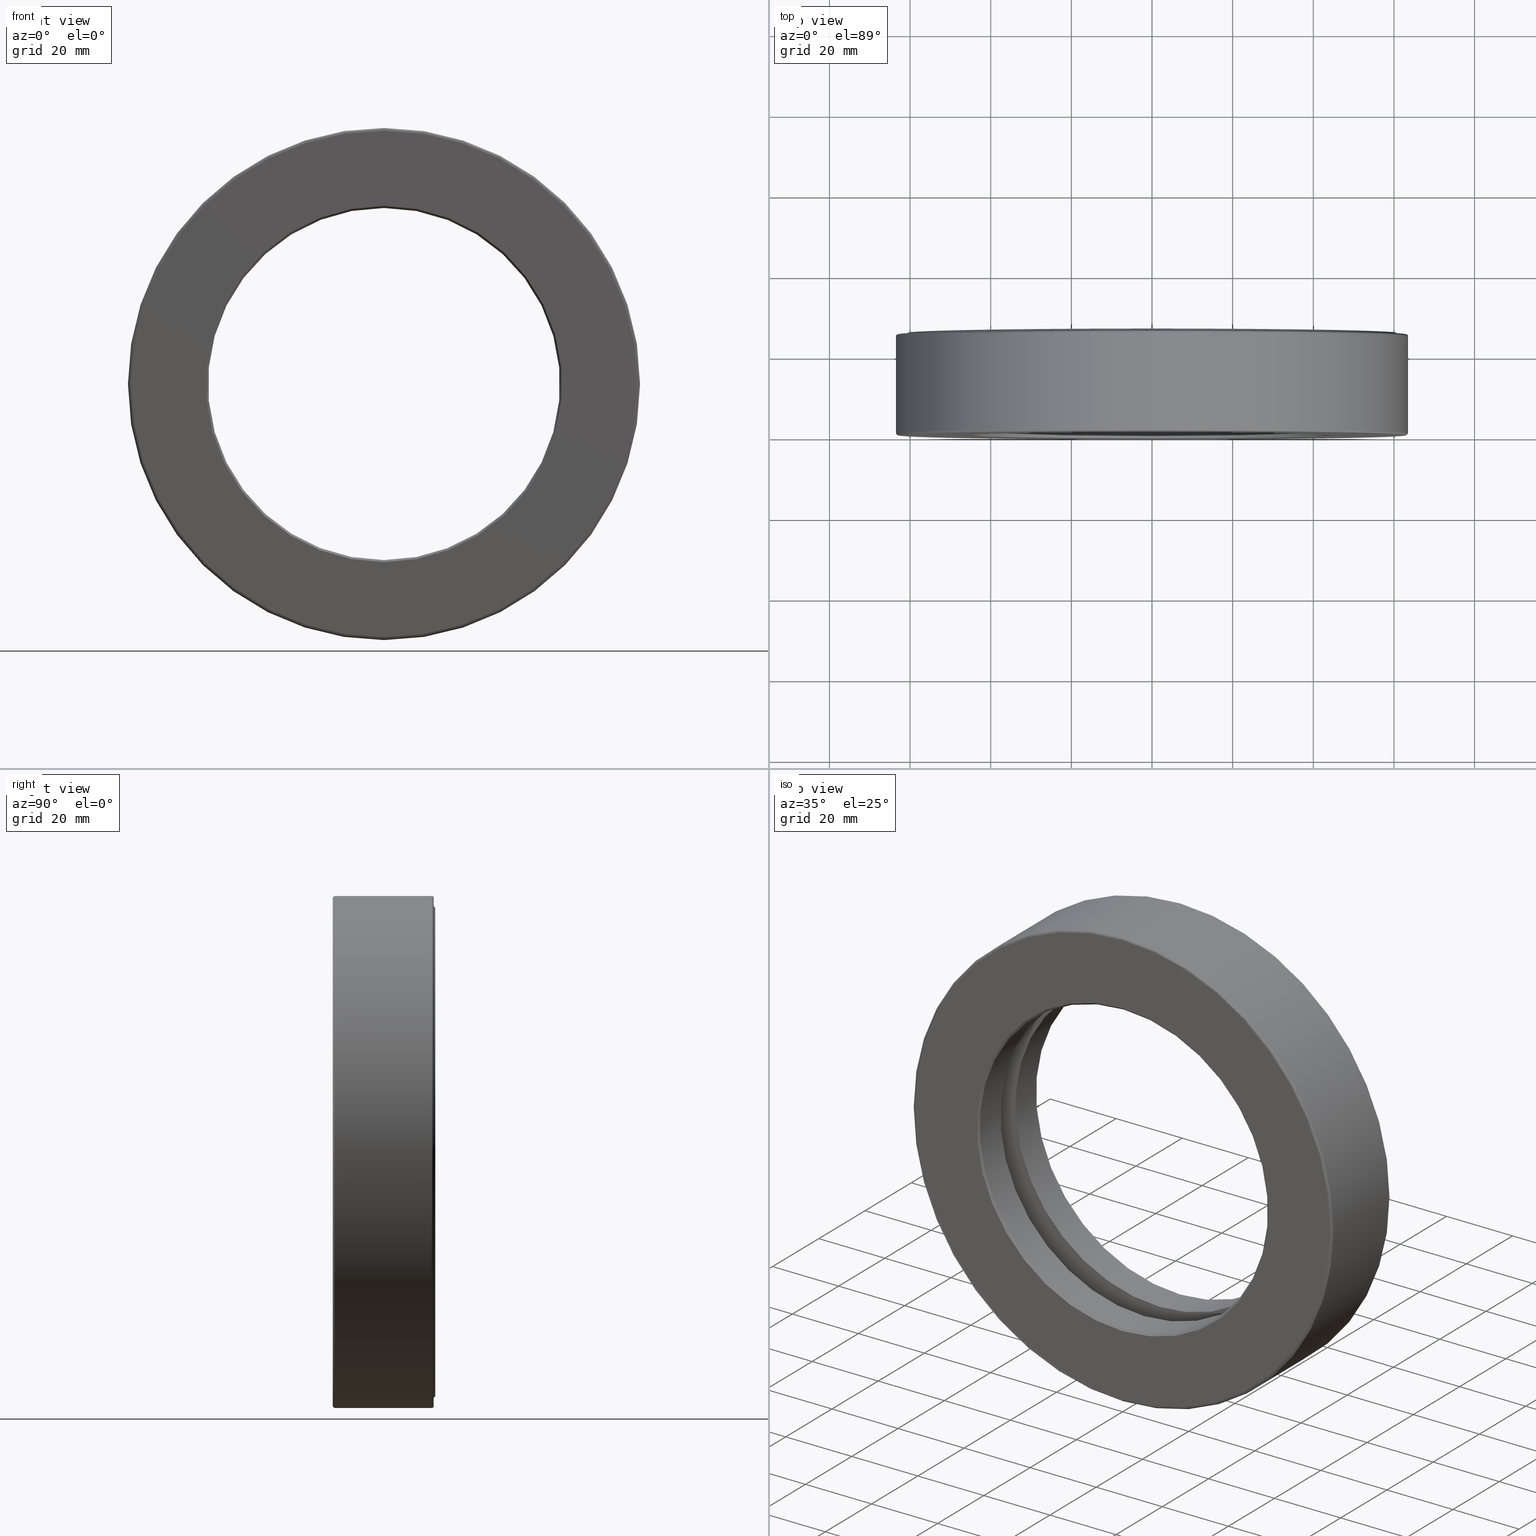
[diagram: canonical four-view strip — front | top / right | iso, engineering-drawing reading convention]
A machine part, canonical four-view strip (front | top / right | iso — engineering-drawing reading convention). The complete STEP part file that produces these views, byte-faithful:
ISO-10303-21;
HEADER;
FILE_DESCRIPTION (( 'STEP AP203' ),
    '1' );
FILE_NAME ('T-100-47.step',
    '2016-06-29T18:27:41',
    ( '' ),
    ( '' ),
    'SwSTEP 2.0',
    'SolidWorks 2016',
    '' );
FILE_SCHEMA (( 'CONFIG_CONTROL_DESIGN' ));
ENDSEC;

DATA;
#1 = AXIS2_PLACEMENT_3D ( 'NONE', #158, #383, #157 ) ;
#2 = ADVANCED_FACE ( 'NONE', ( #310, #262 ), #133, .F. ) ;
#3 = FACE_BOUND ( 'NONE', #249, .T. ) ;
#4 = EDGE_CURVE ( 'NONE', #510, #510, #225, .T. ) ;
#5 = EDGE_LOOP ( 'NONE', ( #479 ) ) ;
#6 = DIRECTION ( 'NONE',  ( -0.0000000000000000000, 1.000000000000000000, -0.0000000000000000000 ) ) ;
#7 = APPROVAL ( #213, 'UNSPECIFIED' ) ;
#8 = CC_DESIGN_PERSON_AND_ORGANIZATION_ASSIGNMENT ( #277, #302, ( #586 ) ) ;
#9 = CALENDAR_DATE ( 2016, 29, 6 ) ;
#10 = FACE_OUTER_BOUND ( 'NONE', #422, .T. ) ;
#11 = FACE_BOUND ( 'NONE', #325, .T. ) ;
#12 = CARTESIAN_POINT ( 'NONE',  ( 0.0000000000000000000, 0.6312499999999998700, 0.0000000000000000000 ) ) ;
#13 = AXIS2_PLACEMENT_3D ( 'NONE', #345, #167, #295 ) ;
#14 = EDGE_LOOP ( 'NONE', ( #460 ) ) ;
#15 = DIRECTION ( 'NONE',  ( 0.0000000000000000000, 0.0000000000000000000, 1.000000000000000000 ) ) ;
#16 = ORIENTED_EDGE ( 'NONE', *, *, #314, .T. ) ;
#17 = DIRECTION ( 'NONE',  ( 0.0000000000000000000, 0.0000000000000000000, 1.000000000000000000 ) ) ;
#18 = DIRECTION ( 'NONE',  ( -0.0000000000000000000, 1.000000000000000000, -0.0000000000000000000 ) ) ;
#19 = CARTESIAN_POINT ( 'NONE',  ( 1.884676553006053000E-015, 0.6312499999999999800, 0.0000000000000000000 ) ) ;
#20 = APPROVAL_DATE_TIME ( #267, #72 ) ;
#21 = DIRECTION ( 'NONE',  ( 1.000000000000000000, 0.0000000000000000000, -1.047444401652940500E-014 ) ) ;
#22 = SPHERICAL_SURFACE ( 'NONE', #355, 0.2187499999999999400 ) ;
#23 = CARTESIAN_POINT ( 'NONE',  ( 0.0000000000000000000, 0.9999999999999996700, 0.0000000000000000000 ) ) ;
#24 = AXIS2_PLACEMENT_3D ( 'NONE', #300, #346, #596 ) ;
#25 = PLANE ( 'NONE',  #391 ) ;
#26 = CYLINDRICAL_SURFACE ( 'NONE', #288, 1.718750000000000400 ) ;
#27 = EDGE_LOOP ( 'NONE', ( #470 ) ) ;
#28 = AXIS2_PLACEMENT_3D ( 'NONE', #104, #276, #556 ) ;
#29 = CARTESIAN_POINT ( 'NONE',  ( 0.0000000000000000000, 2.731847993664263200E-016, 0.0000000000000000000 ) ) ;
#30 = AXIS2_PLACEMENT_3D ( 'NONE', #326, #6, #360 ) ;
#31 = EDGE_LOOP ( 'NONE', ( #89 ) ) ;
#32 = DIRECTION ( 'NONE',  ( -0.0000000000000000000, 1.000000000000000000, -0.0000000000000000000 ) ) ;
#33 = EDGE_LOOP ( 'NONE', ( #357 ) ) ;
#34 = ORIENTED_EDGE ( 'NONE', *, *, #361, .T. ) ;
#35 = CARTESIAN_POINT ( 'NONE',  ( 0.0000000000000000000, 0.9999999999999996700, 0.0000000000000000000 ) ) ;
#36 = CC_DESIGN_APPROVAL ( #7, ( #368 ) ) ;
#37 = DATE_AND_TIME ( #331, #531 ) ;
#38 = CIRCLE ( 'NONE', #428, 1.718750000000000400 ) ;
#39 = DIRECTION ( 'NONE',  ( 0.0000000000000000000, -1.000000000000000000, 0.0000000000000000000 ) ) ;
#40 = EDGE_LOOP ( 'NONE', ( #51 ) ) ;
#41 = EDGE_LOOP ( 'NONE', ( #169 ) ) ;
#42 = CARTESIAN_POINT ( 'NONE',  ( 0.0000000000000000000, 0.9649999999999996400, 2.480000000000000400 ) ) ;
#43 = ADVANCED_FACE ( 'NONE', ( #70, #111 ), #240, .F. ) ;
#44 = MECHANICAL_CONTEXT ( 'NONE', #305, 'mechanical' ) ;
#45 = PRODUCT_DEFINITION ( 'UNKNOWN', '', #586, #534 ) ;
#46 =( NAMED_UNIT ( * ) PLANE_ANGLE_UNIT ( ) SI_UNIT ( $, .RADIAN. ) );
#47 = ADVANCED_FACE ( 'NONE', ( #103, #135 ), #323, .F. ) ;
#48 = PERSON_AND_ORGANIZATION ( #539, #426 ) ;
#49 = FACE_BOUND ( 'NONE', #294, .T. ) ;
#50 = CARTESIAN_POINT ( 'NONE',  ( 0.0000000000000000000, 0.3687499999999995800, 2.480000000000000400 ) ) ;
#51 = ORIENTED_EDGE ( 'NONE', *, *, #373, .T. ) ;
#52 = APPROVAL_PERSON_ORGANIZATION ( #374, #7, #546 ) ;
#53 = DIRECTION ( 'NONE',  ( -0.0000000000000000000, 1.000000000000000000, -0.0000000000000000000 ) ) ;
#54 = AXIS2_PLACEMENT_3D ( 'NONE', #344, #126, #78 ) ;
#55 = FACE_BOUND ( 'NONE', #387, .T. ) ;
#56 = EDGE_LOOP ( 'NONE', ( #205 ) ) ;
#57 = DIRECTION ( 'NONE',  ( 0.0000000000000000000, 0.0000000000000000000, 1.000000000000000000 ) ) ;
#58 = ADVANCED_FACE ( 'NONE', ( #584, #408 ), #285, .F. ) ;
#59 = DIRECTION ( 'NONE',  ( -0.0000000000000000000, 1.000000000000000000, -0.0000000000000000000 ) ) ;
#60 = AXIS2_PLACEMENT_3D ( 'NONE', #184, #186, #265 ) ;
#61 = FACE_OUTER_BOUND ( 'NONE', #41, .T. ) ;
#62 = EDGE_LOOP ( 'NONE', ( #270 ) ) ;
#63 = EDGE_LOOP ( 'NONE', ( #65 ) ) ;
#64 = AXIS2_PLACEMENT_3D ( 'NONE', #301, #441, #496 ) ;
#65 = ORIENTED_EDGE ( 'NONE', *, *, #336, .F. ) ;
#66 = DIRECTION ( 'NONE',  ( 0.0000000000000000000, 0.0000000000000000000, 1.000000000000000000 ) ) ;
#67 = VERTEX_POINT ( 'NONE', #129 ) ;
#68 = DIRECTION ( 'NONE',  ( 0.0000000000000000000, 0.0000000000000000000, 1.000000000000000000 ) ) ;
#69 = VERTEX_POINT ( 'NONE', #405 ) ;
#70 = FACE_OUTER_BOUND ( 'NONE', #77, .T. ) ;
#71 = CARTESIAN_POINT ( 'NONE',  ( 0.0000000000000000000, 0.0000000000000000000, 0.0000000000000000000 ) ) ;
#72 = APPROVAL ( #352, 'UNSPECIFIED' ) ;
#73 = CARTESIAN_POINT ( 'NONE',  ( -2.252250000000000100, 0.4999999999999998300, 0.0000000000000000000 ) ) ;
#74 = CIRCLE ( 'NONE', #566, 2.480000000000000400 ) ;
#75 = FACE_OUTER_BOUND ( 'NONE', #246, .T. ) ;
#76 = CARTESIAN_POINT ( 'NONE',  ( 0.0000000000000000000, 0.9120000000000000300, 0.0000000000000000000 ) ) ;
#77 = EDGE_LOOP ( 'NONE', ( #390 ) ) ;
#78 = DIRECTION ( 'NONE',  ( -3.491481338843132200E-015, 0.0000000000000000000, -1.000000000000000000 ) ) ;
#79 = DIRECTION ( 'NONE',  ( 0.0000000000000000000, 0.0000000000000000000, -1.000000000000000000 ) ) ;
#80 = DATE_AND_TIME ( #315, #478 ) ;
#81 = VERTEX_POINT ( 'NONE', #603 ) ;
#82 = DIRECTION ( 'NONE',  ( -0.0000000000000000000, 1.000000000000000000, -0.0000000000000000000 ) ) ;
#83 = EDGE_LOOP ( 'NONE', ( #410 ) ) ;
#84 = DIRECTION ( 'NONE',  ( 0.0000000000000000000, -1.000000000000000000, 0.0000000000000000000 ) ) ;
#85 = APPLICATION_PROTOCOL_DEFINITION ( 'international standard', 'config_control_design', 1994, #178 ) ;
#86 = CARTESIAN_POINT ( 'NONE',  ( 0.0000000000000000000, 0.0000000000000000000, 0.0000000000000000000 ) ) ;
#87 = CARTESIAN_POINT ( 'NONE',  ( 0.0000000000000000000, -1.520092225959140700E-016, 2.480000000000000400 ) ) ;
#88 = CIRCLE ( 'NONE', #1, 2.427249999999999900 ) ;
#89 = ORIENTED_EDGE ( 'NONE', *, *, #560, .F. ) ;
#90 = ORIENTED_EDGE ( 'NONE', *, *, #99, .F. ) ;
#91 = PERSON_AND_ORGANIZATION_ROLE ( 'classification_officer' ) ;
#92 = CLOSED_SHELL ( 'NONE', ( #191, #605, #481, #58, #263, #214, #509, #312 ) ) ;
#93 = APPLICATION_PROTOCOL_DEFINITION ( 'international standard', 'config_control_design', 1994, #305 ) ;
#94 = AXIS2_PLACEMENT_3D ( 'NONE', #561, #141, #463 ) ;
#95 = EDGE_CURVE ( 'NONE', #349, #349, #564, .T. ) ;
#96 = VERTEX_POINT ( 'NONE', #393 ) ;
#97 = EDGE_LOOP ( 'NONE', ( #526 ) ) ;
#98 = ADVANCED_FACE ( 'NONE', ( #517, #146 ), #190, .T. ) ;
#99 = EDGE_CURVE ( 'NONE', #466, #466, #453, .T. ) ;
#100 = MANIFOLD_SOLID_BREP ( 'BALLS[1]', #412 ) ;
#101 = VERTEX_POINT ( 'NONE', #444 ) ;
#102 = AXIS2_PLACEMENT_3D ( 'NONE', #447, #32, #443 ) ;
#103 = FACE_OUTER_BOUND ( 'NONE', #381, .T. ) ;
#104 = CARTESIAN_POINT ( 'NONE',  ( 0.0000000000000000000, 0.0000000000000000000, 0.0000000000000000000 ) ) ;
#105 = CARTESIAN_POINT ( 'NONE',  ( 0.0000000000000000000, 0.0000000000000000000, 0.0000000000000000000 ) ) ;
#106 = CARTESIAN_POINT ( 'NONE',  ( 0.0000000000000000000, 0.9849999999999997600, 2.480000000000000400 ) ) ;
#107 = VERTEX_POINT ( 'NONE', #119 ) ;
#108 = AXIS2_PLACEMENT_3D ( 'NONE', #425, #418, #520 ) ;
#109 = PRODUCT ( 'T-100-47', 'T-100-47', '', ( #44 ) ) ;
#110 = FACE_OUTER_BOUND ( 'NONE', #536, .T. ) ;
#111 = FACE_OUTER_BOUND ( 'NONE', #219, .T. ) ;
#112 = ORIENTED_EDGE ( 'NONE', *, *, #373, .F. ) ;
#113 = DIRECTION ( 'NONE',  ( -0.0000000000000000000, 1.000000000000000000, 0.0000000000000000000 ) ) ;
#114 = AXIS2_PLACEMENT_3D ( 'NONE', #335, #197, #283 ) ;
#115 = DIRECTION ( 'NONE',  ( 0.0000000000000000000, 0.0000000000000000000, 1.000000000000000000 ) ) ;
#116 = FACE_OUTER_BOUND ( 'NONE', #179, .T. ) ;
#117 = EDGE_CURVE ( 'NONE', #199, #199, #168, .T. ) ;
#118 = CARTESIAN_POINT ( 'NONE',  ( 2.252250000000000100, 0.4999999999999998300, -1.572737769081889400E-014 ) ) ;
#119 = CARTESIAN_POINT ( 'NONE',  ( 0.0000000000000000000, 0.9649999999999996400, 2.419999999999999900 ) ) ;
#120 = EDGE_CURVE ( 'NONE', #589, #589, #177, .T. ) ;
#121 = APPROVAL_PERSON_ORGANIZATION ( #348, #72, #220 ) ;
#122 = CARTESIAN_POINT ( 'NONE',  ( 0.0000000000000000000, 0.01500000000000052300, 2.499999999999999600 ) ) ;
#123 = CYLINDRICAL_SURFACE ( 'NONE', #201, 2.419999999999999900 ) ;
#124 = CIRCLE ( 'NONE', #244, 2.500000000000000000 ) ;
#125 = EDGE_LOOP ( 'NONE', ( #34 ) ) ;
#126 = DIRECTION ( 'NONE',  ( -1.000000000000000000, 0.0000000000000000000, 3.491481338843132200E-015 ) ) ;
#127 = ORIENTED_EDGE ( 'NONE', *, *, #236, .F. ) ;
#128 = CC_DESIGN_PERSON_AND_ORGANIZATION_ASSIGNMENT ( #48, #252, ( #45 ) ) ;
#129 = CARTESIAN_POINT ( 'NONE',  ( 0.0000000000000000000, -1.515321933985646100E-016, 2.484999999999999400 ) ) ;
#130 = ADVANCED_FACE ( 'NONE', ( #11, #543 ), #274, .F. ) ;
#131 = CARTESIAN_POINT ( 'NONE',  ( 0.0000000000000000000, 0.0000000000000000000, 0.0000000000000000000 ) ) ;
#132 = PERSON_AND_ORGANIZATION ( #539, #426 ) ;
#133 = PLANE ( 'NONE',  #598 ) ;
#134 = ORIENTED_EDGE ( 'NONE', *, *, #271, .T. ) ;
#135 = FACE_OUTER_BOUND ( 'NONE', #469, .T. ) ;
#136 = ADVANCED_FACE ( 'NONE', ( #467, #532 ), #377, .F. ) ;
#137 = CC_DESIGN_PERSON_AND_ORGANIZATION_ASSIGNMENT ( #132, #91, ( #368 ) ) ;
#138 = AXIS2_PLACEMENT_3D ( 'NONE', #150, #18, #575 ) ;
#139 = VERTEX_POINT ( 'NONE', #87 ) ;
#140 = EDGE_LOOP ( 'NONE', ( #287 ) ) ;
#141 = DIRECTION ( 'NONE',  ( 0.0000000000000000000, -1.000000000000000000, 0.0000000000000000000 ) ) ;
#142 = ORIENTED_EDGE ( 'NONE', *, *, #560, .T. ) ;
#143 = DIRECTION ( 'NONE',  ( -0.0000000000000000000, 1.000000000000000000, -0.0000000000000000000 ) ) ;
#144 = DIRECTION ( 'NONE',  ( 0.0000000000000000000, 0.0000000000000000000, 1.000000000000000000 ) ) ;
#145 = AXIS2_PLACEMENT_3D ( 'NONE', #420, #414, #559 ) ;
#146 = FACE_OUTER_BOUND ( 'NONE', #228, .T. ) ;
#147 = PLANE ( 'NONE',  #320 ) ;
#148 = EDGE_CURVE ( 'NONE', #459, #459, #501, .T. ) ;
#149 = MANIFOLD_SOLID_BREP ( 'BALLS[2]', #363 ) ;
#150 = CARTESIAN_POINT ( 'NONE',  ( 0.0000000000000000000, 0.3687499999999997400, 0.0000000000000000000 ) ) ;
#151 = EDGE_LOOP ( 'NONE', ( #411 ) ) ;
#152 = DIRECTION ( 'NONE',  ( 1.047444401652940500E-014, 0.0000000000000000000, 1.000000000000000000 ) ) ;
#153 = LOCAL_TIME ( 14, 27, 41.00000000000000000, #232 ) ;
#154 = FACE_OUTER_BOUND ( 'NONE', #318, .T. ) ;
#155 = CIRCLE ( 'NONE', #592, 1.738750000000000500 ) ;
#156 = EDGE_LOOP ( 'NONE', ( #504 ) ) ;
#157 = DIRECTION ( 'NONE',  ( 0.0000000000000000000, 0.0000000000000000000, 1.000000000000000000 ) ) ;
#158 = CARTESIAN_POINT ( 'NONE',  ( 0.0000000000000000000, 0.3687499999999997400, 0.0000000000000000000 ) ) ;
#159 = AXIS2_PLACEMENT_3D ( 'NONE', #409, #273, #366 ) ;
#160 = DIRECTION ( 'NONE',  ( 0.0000000000000000000, 0.0000000000000000000, 1.000000000000000000 ) ) ;
#161 = FACE_BOUND ( 'NONE', #207, .T. ) ;
#162 = ORIENTED_EDGE ( 'NONE', *, *, #406, .T. ) ;
#163 = CLOSED_SHELL ( 'NONE', ( #354 ) ) ;
#164 = CARTESIAN_POINT ( 'NONE',  ( 0.0000000000000000000, 0.3687499999999997400, 0.0000000000000000000 ) ) ;
#165 = COORDINATED_UNIVERSAL_TIME_OFFSET ( 5, 0, .BEHIND. ) ;
#166 = VERTEX_POINT ( 'NONE', #397 ) ;
#167 = DIRECTION ( 'NONE',  ( -0.0000000000000000000, 1.000000000000000000, -0.0000000000000000000 ) ) ;
#168 = CIRCLE ( 'NONE', #231, 2.480000000000000400 ) ;
#169 = ORIENTED_EDGE ( 'NONE', *, *, #227, .T. ) ;
#170 = AXIS2_PLACEMENT_3D ( 'NONE', #73, #375, #245 ) ;
#171 = EDGE_LOOP ( 'NONE', ( #446 ) ) ;
#172 = CARTESIAN_POINT ( 'NONE',  ( 0.0000000000000000000, 0.6312499999999998700, 2.427249999999999900 ) ) ;
#173 = ADVANCED_FACE ( 'NONE', ( #364, #49 ), #147, .F. ) ;
#174 = CARTESIAN_POINT ( 'NONE',  ( 0.0000000000000000000, 0.6312499999999999800, 1.718750000000000400 ) ) ;
#175 = SECURITY_CLASSIFICATION_LEVEL ( 'unclassified' ) ;
#176 = CIRCLE ( 'NONE', #24, 2.427249999999999900 ) ;
#177 = CIRCLE ( 'NONE', #264, 2.480000000000000400 ) ;
#178 = APPLICATION_CONTEXT ( 'configuration controlled 3d designs of mechanical parts and assemblies' ) ;
#179 = EDGE_LOOP ( 'NONE', ( #489 ) ) ;
#180 = AXIS2_PLACEMENT_3D ( 'NONE', #332, #193, #369 ) ;
#181 = EDGE_LOOP ( 'NONE', ( #127 ) ) ;
#182 = ADVANCED_FACE ( 'NONE', ( #55, #278 ), #372, .F. ) ;
#183 = APPROVAL_PERSON_ORGANIZATION ( #516, #272, #595 ) ;
#184 = CARTESIAN_POINT ( 'NONE',  ( 0.0000000000000000000, 0.0000000000000000000, 0.0000000000000000000 ) ) ;
#185 = CYLINDRICAL_SURFACE ( 'NONE', #471, 2.473000000000000300 ) ;
#186 = DIRECTION ( 'NONE',  ( -0.0000000000000000000, 1.000000000000000000, -0.0000000000000000000 ) ) ;
#187 = DIRECTION ( 'NONE',  ( 0.0000000000000000000, 0.0000000000000000000, 1.000000000000000000 ) ) ;
#188 = AXIS2_PLACEMENT_3D ( 'NONE', #23, #568, #472 ) ;
#189 = TOROIDAL_SURFACE ( 'NONE', #222, 2.252250000000000100, 0.2187499999999999200 ) ;
#190 = TOROIDAL_SURFACE ( 'NONE', #159, 2.480000000000000400, 0.01999999999999992400 ) ;
#191 = ADVANCED_FACE ( 'NONE', ( #255, #75 ), #192, .T. ) ;
#192 = PLANE ( 'NONE',  #329 ) ;
#193 = DIRECTION ( 'NONE',  ( -0.0000000000000000000, 1.000000000000000000, -0.0000000000000000000 ) ) ;
#194 = EDGE_LOOP ( 'NONE', ( #239 ) ) ;
#195 = ORIENTED_EDGE ( 'NONE', *, *, #280, .F. ) ;
#196 = DIRECTION ( 'NONE',  ( -0.0000000000000000000, 1.000000000000000000, -0.0000000000000000000 ) ) ;
#197 = DIRECTION ( 'NONE',  ( 0.0000000000000000000, -1.000000000000000000, 0.0000000000000000000 ) ) ;
#198 = LOCAL_TIME ( 14, 27, 41.00000000000000000, #392 ) ;
#199 = VERTEX_POINT ( 'NONE', #106 ) ;
#200 = PLANE ( 'NONE',  #188 ) ;
#201 = AXIS2_PLACEMENT_3D ( 'NONE', #389, #439, #538 ) ;
#202 = MANIFOLD_SOLID_BREP ( 'Revolve3', #163 ) ;
#203 = CIRCLE ( 'NONE', #64, 2.480000000000000400 ) ;
#204 = FACE_OUTER_BOUND ( 'NONE', #521, .T. ) ;
#205 = ORIENTED_EDGE ( 'NONE', *, *, #4, .F. ) ;
#206 = CARTESIAN_POINT ( 'NONE',  ( 0.0000000000000000000, 0.02000000000000019800, 0.0000000000000000000 ) ) ;
#207 = EDGE_LOOP ( 'NONE', ( #112 ) ) ;
#208 = AXIS2_PLACEMENT_3D ( 'NONE', #206, #241, #160 ) ;
#209 = CARTESIAN_POINT ( 'NONE',  ( 0.0000000000000000000, 0.4999999999999998300, 0.0000000000000000000 ) ) ;
#210 = DIRECTION ( 'NONE',  ( 0.0000000000000000000, 0.0000000000000000000, 1.000000000000000000 ) ) ;
#211 = FACE_OUTER_BOUND ( 'NONE', #462, .T. ) ;
#212 = DIRECTION ( 'NONE',  ( 0.0000000000000000000, 0.0000000000000000000, 1.000000000000000000 ) ) ;
#213 = APPROVAL_STATUS ( 'not_yet_approved' ) ;
#214 = ADVANCED_FACE ( 'NONE', ( #204, #487 ), #200, .T. ) ;
#215 = CONICAL_SURFACE ( 'NONE', #449, 2.484999999999999400, 0.7853981633974341800 ) ;
#216 = FACE_BOUND ( 'NONE', #97, .T. ) ;
#217 = AXIS2_PLACEMENT_3D ( 'NONE', #330, #490, #386 ) ;
#218 = MANIFOLD_SOLID_BREP ( 'Revolve2[2]', #92 ) ;
#219 = EDGE_LOOP ( 'NONE', ( #473 ) ) ;
#220 = APPROVAL_ROLE ( '' ) ;
#221 = FACE_OUTER_BOUND ( 'NONE', #171, .T. ) ;
#222 = AXIS2_PLACEMENT_3D ( 'NONE', #209, #342, #210 ) ;
#223 = DATE_AND_TIME ( #483, #492 ) ;
#224 = VERTEX_POINT ( 'NONE', #550 ) ;
#225 = CIRCLE ( 'NONE', #430, 2.077250000000000300 ) ;
#226 = DIRECTION ( 'NONE',  ( -0.0000000000000000000, 1.000000000000000000, -0.0000000000000000000 ) ) ;
#227 = EDGE_CURVE ( 'NONE', #96, #96, #434, .T. ) ;
#228 = EDGE_LOOP ( 'NONE', ( #16 ) ) ;
#229 = CC_DESIGN_DATE_AND_TIME_ASSIGNMENT ( #80, #454, ( #45 ) ) ;
#230 = DIRECTION ( 'NONE',  ( -0.0000000000000000000, 1.000000000000000000, 0.0000000000000000000 ) ) ;
#231 = AXIS2_PLACEMENT_3D ( 'NONE', #317, #226, #370 ) ;
#232 = COORDINATED_UNIVERSAL_TIME_OFFSET ( 5, 0, .BEHIND. ) ;
#233 = DIRECTION ( 'NONE',  ( 0.0000000000000000000, -0.0000000000000000000, -1.000000000000000000 ) ) ;
#234 = ORIENTED_EDGE ( 'NONE', *, *, #117, .F. ) ;
#235 = DIRECTION ( 'NONE',  ( -0.0000000000000000000, 1.000000000000000000, -0.0000000000000000000 ) ) ;
#236 = EDGE_CURVE ( 'NONE', #574, #574, #338, .T. ) ;
#237 = DIRECTION ( 'NONE',  ( -0.0000000000000000000, 1.000000000000000000, -0.0000000000000000000 ) ) ;
#238 = CONICAL_SURFACE ( 'NONE', #557, 2.384999999999999800, 0.7853981633974513900 ) ;
#239 = ORIENTED_EDGE ( 'NONE', *, *, #415, .T. ) ;
#240 = CYLINDRICAL_SURFACE ( 'NONE', #28, 2.480000000000000400 ) ;
#241 = DIRECTION ( 'NONE',  ( -0.0000000000000000000, 1.000000000000000000, -0.0000000000000000000 ) ) ;
#242 = EDGE_LOOP ( 'NONE', ( #604 ) ) ;
#243 = EDGE_LOOP ( 'NONE', ( #234 ) ) ;
#244 = AXIS2_PLACEMENT_3D ( 'NONE', #289, #582, #432 ) ;
#245 = DIRECTION ( 'NONE',  ( 1.000000000000000000, 0.0000000000000000000, 0.0000000000000000000 ) ) ;
#246 = EDGE_LOOP ( 'NONE', ( #395 ) ) ;
#247 = ORIENTED_EDGE ( 'NONE', *, *, #290, .T. ) ;
#248 = DIRECTION ( 'NONE',  ( 0.0000000000000000000, 0.0000000000000000000, 1.000000000000000000 ) ) ;
#249 = EDGE_LOOP ( 'NONE', ( #247 ) ) ;
#250 = DIRECTION ( 'NONE',  ( 0.0000000000000000000, 0.0000000000000000000, 1.000000000000000000 ) ) ;
#251 = CARTESIAN_POINT ( 'NONE',  ( 0.0000000000000000000, -1.515321933985646100E-016, 0.0000000000000000000 ) ) ;
#252 = PERSON_AND_ORGANIZATION_ROLE ( 'creator' ) ;
#253 = FACE_OUTER_BOUND ( 'NONE', #63, .T. ) ;
#254 =( GEOMETRIC_REPRESENTATION_CONTEXT ( 3 ) GLOBAL_UNCERTAINTY_ASSIGNED_CONTEXT ( ( #599 ) ) GLOBAL_UNIT_ASSIGNED_CONTEXT ( ( #497, #46, #307 ) ) REPRESENTATION_CONTEXT ( 'NONE', 'WORKASPACE' ) );
#255 = FACE_BOUND ( 'NONE', #242, .T. ) ;
#256 = DIRECTION ( 'NONE',  ( -1.000000000000000000, 0.0000000000000000000, 6.982962677686264300E-015 ) ) ;
#257 = ADVANCED_FACE ( 'NONE', ( #525, #116 ), #549, .T. ) ;
#258 = ORIENTED_EDGE ( 'NONE', *, *, #4, .T. ) ;
#259 = CARTESIAN_POINT ( 'NONE',  ( -3.708388500185622300E-032, -1.517707079972393400E-016, 0.0000000000000000000 ) ) ;
#260 = VERTEX_POINT ( 'NONE', #172 ) ;
#261 = CARTESIAN_POINT ( 'NONE',  ( 0.0000000000000000000, 0.9999999999999996700, 1.738750000000000500 ) ) ;
#262 = FACE_BOUND ( 'NONE', #194, .T. ) ;
#263 = ADVANCED_FACE ( 'NONE', ( #419, #161 ), #602, .F. ) ;
#264 = AXIS2_PLACEMENT_3D ( 'NONE', #319, #143, #17 ) ;
#265 = DIRECTION ( 'NONE',  ( 0.0000000000000000000, 0.0000000000000000000, 1.000000000000000000 ) ) ;
#266 = ADVANCED_FACE ( 'NONE', ( #508, #216 ), #269, .F. ) ;
#267 = DATE_AND_TIME ( #9, #198 ) ;
#268 = CIRCLE ( 'NONE', #424, 1.718750000000000400 ) ;
#269 = CONICAL_SURFACE ( 'NONE', #114, 1.718750000000000400, 0.7853981633974517200 ) ;
#270 = ORIENTED_EDGE ( 'NONE', *, *, #99, .T. ) ;
#271 = EDGE_CURVE ( 'NONE', #107, #107, #404, .T. ) ;
#272 = APPROVAL ( #448, 'UNSPECIFIED' ) ;
#273 = DIRECTION ( 'NONE',  ( -0.0000000000000000000, 1.000000000000000000, -0.0000000000000000000 ) ) ;
#274 = PLANE ( 'NONE',  #94 ) ;
#275 = ADVANCED_FACE ( 'NONE', ( ), #22, .T. ) ;
#276 = DIRECTION ( 'NONE',  ( -0.0000000000000000000, 1.000000000000000000, -0.0000000000000000000 ) ) ;
#277 = PERSON_AND_ORGANIZATION ( #539, #426 ) ;
#278 = FACE_OUTER_BOUND ( 'NONE', #83, .T. ) ;
#279 = CARTESIAN_POINT ( 'NONE',  ( 0.0000000000000000000, 0.9649999999999996400, 0.0000000000000000000 ) ) ;
#280 = EDGE_CURVE ( 'NONE', #224, #224, #371, .T. ) ;
#281 = EDGE_LOOP ( 'NONE', ( #306 ) ) ;
#282 = CARTESIAN_POINT ( 'NONE',  ( 0.0000000000000000000, 0.9799999999999995400, 0.0000000000000000000 ) ) ;
#283 = DIRECTION ( 'NONE',  ( 0.0000000000000000000, 0.0000000000000000000, -1.000000000000000000 ) ) ;
#284 = APPROVAL_DATE_TIME ( #37, #7 ) ;
#285 = CYLINDRICAL_SURFACE ( 'NONE', #145, 1.718750000000000400 ) ;
#286 = CARTESIAN_POINT ( 'NONE',  ( 0.0000000000000000000, 0.6312499999999999800, 2.473000000000000300 ) ) ;
#287 = ORIENTED_EDGE ( 'NONE', *, *, #406, .F. ) ;
#288 = AXIS2_PLACEMENT_3D ( 'NONE', #86, #398, #450 ) ;
#289 = CARTESIAN_POINT ( 'NONE',  ( 0.0000000000000000000, 0.9649999999999996400, 0.0000000000000000000 ) ) ;
#290 = EDGE_CURVE ( 'NONE', #166, #166, #155, .T. ) ;
#291 = FACE_OUTER_BOUND ( 'NONE', #417, .T. ) ;
#292 = CIRCLE ( 'NONE', #208, 1.718750000000000400 ) ;
#293 = AXIS2_PLACEMENT_3D ( 'NONE', #519, #474, #233 ) ;
#294 = EDGE_LOOP ( 'NONE', ( #134 ) ) ;
#295 = DIRECTION ( 'NONE',  ( 0.0000000000000000000, 0.0000000000000000000, 1.000000000000000000 ) ) ;
#296 = DIRECTION ( 'NONE',  ( -0.0000000000000000000, 1.000000000000000000, -0.0000000000000000000 ) ) ;
#297 = AXIS2_PLACEMENT_3D ( 'NONE', #282, #429, #421 ) ;
#298 = COORDINATED_UNIVERSAL_TIME_OFFSET ( 5, 0, .BEHIND. ) ;
#299 = VERTEX_POINT ( 'NONE', #456 ) ;
#300 = CARTESIAN_POINT ( 'NONE',  ( 0.0000000000000000000, 0.6312499999999998700, 0.0000000000000000000 ) ) ;
#301 = CARTESIAN_POINT ( 'NONE',  ( 0.0000000000000000000, 0.3687499999999995800, 0.0000000000000000000 ) ) ;
#302 = PERSON_AND_ORGANIZATION_ROLE ( 'design_supplier' ) ;
#303 = EDGE_CURVE ( 'NONE', #101, #101, #292, .T. ) ;
#304 = ADVANCED_FACE ( 'NONE', ( #493, #356 ), #452, .T. ) ;
#305 = APPLICATION_CONTEXT ( 'configuration controlled 3d designs of mechanical parts and assemblies' ) ;
#306 = ORIENTED_EDGE ( 'NONE', *, *, #148, .T. ) ;
#307 =( NAMED_UNIT ( * ) SI_UNIT ( $, .STERADIAN. ) SOLID_ANGLE_UNIT ( ) );
#308 = CIRCLE ( 'NONE', #102, 2.484999999999999400 ) ;
#309 = AXIS2_PLACEMENT_3D ( 'NONE', #118, #544, #256 ) ;
#310 = FACE_OUTER_BOUND ( 'NONE', #31, .T. ) ;
#311 = PERSON_AND_ORGANIZATION_ROLE ( 'design_owner' ) ;
#312 = ADVANCED_FACE ( 'NONE', ( #385, #253 ), #185, .T. ) ;
#313 = EDGE_LOOP ( 'NONE', ( #195 ) ) ;
#314 = EDGE_CURVE ( 'NONE', #485, #485, #124, .T. ) ;
#315 = CALENDAR_DATE ( 2016, 29, 6 ) ;
#316 = SHAPE_DEFINITION_REPRESENTATION ( #590, #445 ) ;
#317 = CARTESIAN_POINT ( 'NONE',  ( 0.0000000000000000000, 0.9849999999999997600, 0.0000000000000000000 ) ) ;
#318 = EDGE_LOOP ( 'NONE', ( #378 ) ) ;
#319 = CARTESIAN_POINT ( 'NONE',  ( 0.0000000000000000000, 0.004999999999999976700, 0.0000000000000000000 ) ) ;
#320 = AXIS2_PLACEMENT_3D ( 'NONE', #279, #230, #476 ) ;
#321 = CARTESIAN_POINT ( 'NONE',  ( 0.0000000000000000000, 0.9999999999999996700, 0.0000000000000000000 ) ) ;
#322 = FACE_BOUND ( 'NONE', #529, .T. ) ;
#323 = CYLINDRICAL_SURFACE ( 'NONE', #60, 2.480000000000000400 ) ;
#324 = DIRECTION ( 'NONE',  ( -0.0000000000000000000, 1.000000000000000000, -0.0000000000000000000 ) ) ;
#325 = EDGE_LOOP ( 'NONE', ( #350 ) ) ;
#326 = CARTESIAN_POINT ( 'NONE',  ( 0.0000000000000000000, 0.4999999999999998300, 0.0000000000000000000 ) ) ;
#327 = ORIENTED_EDGE ( 'NONE', *, *, #361, .F. ) ;
#328 = CARTESIAN_POINT ( 'NONE',  ( 0.0000000000000000000, 0.004999999999999976700, 2.480000000000000400 ) ) ;
#329 = AXIS2_PLACEMENT_3D ( 'NONE', #19, #570, #518 ) ;
#330 = CARTESIAN_POINT ( 'NONE',  ( 0.0000000000000000000, 0.9999999999999996700, 0.0000000000000000000 ) ) ;
#331 = CALENDAR_DATE ( 2016, 29, 6 ) ;
#332 = CARTESIAN_POINT ( 'NONE',  ( 0.0000000000000000000, 0.9649999999999996400, 0.0000000000000000000 ) ) ;
#333 = FACE_BOUND ( 'NONE', #563, .T. ) ;
#334 = AXIS2_PLACEMENT_3D ( 'NONE', #515, #475, #68 ) ;
#335 = CARTESIAN_POINT ( 'NONE',  ( 0.0000000000000000000, 0.02000000000000019800, 0.0000000000000000000 ) ) ;
#336 = EDGE_CURVE ( 'NONE', #299, #299, #562, .T. ) ;
#337 = FACE_OUTER_BOUND ( 'NONE', #56, .T. ) ;
#338 = CIRCLE ( 'NONE', #138, 1.718750000000000400 ) ;
#339 = CC_DESIGN_APPROVAL ( #72, ( #45 ) ) ;
#340 = DIRECTION ( 'NONE',  ( -0.0000000000000000000, 1.000000000000000000, -0.0000000000000000000 ) ) ;
#341 = DIRECTION ( 'NONE',  ( -0.0000000000000000000, 1.000000000000000000, -0.0000000000000000000 ) ) ;
#342 = DIRECTION ( 'NONE',  ( -0.0000000000000000000, 1.000000000000000000, -0.0000000000000000000 ) ) ;
#343 = FACE_BOUND ( 'NONE', #181, .T. ) ;
#344 = CARTESIAN_POINT ( 'NONE',  ( 7.863688845409447200E-015, 0.4999999999999998300, 2.252250000000000100 ) ) ;
#345 = CARTESIAN_POINT ( 'NONE',  ( 0.0000000000000000000, 0.9849999999999997600, 0.0000000000000000000 ) ) ;
#346 = DIRECTION ( 'NONE',  ( -0.0000000000000000000, 1.000000000000000000, -0.0000000000000000000 ) ) ;
#347 = CARTESIAN_POINT ( 'NONE',  ( 0.0000000000000000000, 0.3687499999999997400, 1.718750000000000400 ) ) ;
#348 = PERSON_AND_ORGANIZATION ( #539, #426 ) ;
#349 = VERTEX_POINT ( 'NONE', #261 ) ;
#350 = ORIENTED_EDGE ( 'NONE', *, *, #537, .F. ) ;
#351 = ORIENTED_EDGE ( 'NONE', *, *, #120, .F. ) ;
#352 = APPROVAL_STATUS ( 'not_yet_approved' ) ;
#353 = CARTESIAN_POINT ( 'NONE',  ( 0.0000000000000000000, 0.9849999999999997600, 2.419999999999999900 ) ) ;
#354 = ADVANCED_FACE ( 'NONE', ( ), #498, .T. ) ;
#355 = AXIS2_PLACEMENT_3D ( 'NONE', #572, #21, #152 ) ;
#356 = FACE_BOUND ( 'NONE', #62, .T. ) ;
#357 = ORIENTED_EDGE ( 'NONE', *, *, #271, .F. ) ;
#358 = ORIENTED_EDGE ( 'NONE', *, *, #455, .F. ) ;
#359 = AXIS2_PLACEMENT_3D ( 'NONE', #540, #84, #591 ) ;
#360 = DIRECTION ( 'NONE',  ( 0.0000000000000000000, 0.0000000000000000000, 1.000000000000000000 ) ) ;
#361 = EDGE_CURVE ( 'NONE', #81, #81, #88, .T. ) ;
#362 = CIRCLE ( 'NONE', #506, 2.499999999999999600 ) ;
#363 = CLOSED_SHELL ( 'NONE', ( #551 ) ) ;
#364 = FACE_OUTER_BOUND ( 'NONE', #484, .T. ) ;
#365 = ORIENTED_EDGE ( 'NONE', *, *, #537, .T. ) ;
#366 = DIRECTION ( 'NONE',  ( 0.0000000000000000000, 0.0000000000000000000, 1.000000000000000000 ) ) ;
#367 = EDGE_LOOP ( 'NONE', ( #351 ) ) ;
#368 = SECURITY_CLASSIFICATION ( '', '', #175 ) ;
#369 = DIRECTION ( 'NONE',  ( 0.0000000000000000000, 0.0000000000000000000, 1.000000000000000000 ) ) ;
#370 = DIRECTION ( 'NONE',  ( 0.0000000000000000000, 0.0000000000000000000, 1.000000000000000000 ) ) ;
#371 = CIRCLE ( 'NONE', #217, 2.384999999999999800 ) ;
#372 = PLANE ( 'NONE',  #293 ) ;
#373 = EDGE_CURVE ( 'NONE', #69, #69, #268, .T. ) ;
#374 = PERSON_AND_ORGANIZATION ( #539, #426 ) ;
#375 = DIRECTION ( 'NONE',  ( 0.0000000000000000000, 0.0000000000000000000, -1.000000000000000000 ) ) ;
#376 = VERTEX_POINT ( 'NONE', #353 ) ;
#377 = TOROIDAL_SURFACE ( 'NONE', #30, 2.252250000000000100, 0.2187500000000000300 ) ;
#378 = ORIENTED_EDGE ( 'NONE', *, *, #236, .T. ) ;
#379 = CARTESIAN_POINT ( 'NONE',  ( 0.0000000000000000000, -1.520092225959140700E-016, 0.0000000000000000000 ) ) ;
#380 = ORIENTED_EDGE ( 'NONE', *, *, #503, .F. ) ;
#381 = EDGE_LOOP ( 'NONE', ( #576 ) ) ;
#382 = DIRECTION ( 'NONE',  ( -0.0000000000000000000, 1.000000000000000000, -0.0000000000000000000 ) ) ;
#383 = DIRECTION ( 'NONE',  ( -0.0000000000000000000, 1.000000000000000000, -0.0000000000000000000 ) ) ;
#384 = DATE_AND_TIME ( #458, #153 ) ;
#385 = FACE_OUTER_BOUND ( 'NONE', #281, .T. ) ;
#386 = DIRECTION ( 'NONE',  ( 0.0000000000000000000, 0.0000000000000000000, 1.000000000000000000 ) ) ;
#387 = EDGE_LOOP ( 'NONE', ( #327 ) ) ;
#388 = AXIS2_PLACEMENT_3D ( 'NONE', #76, #340, #579 ) ;
#389 = CARTESIAN_POINT ( 'NONE',  ( 0.0000000000000000000, 0.0000000000000000000, 0.0000000000000000000 ) ) ;
#390 = ORIENTED_EDGE ( 'NONE', *, *, #415, .F. ) ;
#391 = AXIS2_PLACEMENT_3D ( 'NONE', #523, #113, #482 ) ;
#392 = COORDINATED_UNIVERSAL_TIME_OFFSET ( 5, 0, .BEHIND. ) ;
#393 = CARTESIAN_POINT ( 'NONE',  ( 0.0000000000000000000, 0.3687499999999997400, 2.077250000000000300 ) ) ;
#394 = FACE_OUTER_BOUND ( 'NONE', #33, .T. ) ;
#395 = ORIENTED_EDGE ( 'NONE', *, *, #148, .F. ) ;
#396 = DIRECTION ( 'NONE',  ( 0.0000000000000000000, -1.000000000000000000, 0.0000000000000000000 ) ) ;
#397 = CARTESIAN_POINT ( 'NONE',  ( 0.0000000000000000000, 2.731847993664263200E-016, 1.738750000000000500 ) ) ;
#398 = DIRECTION ( 'NONE',  ( -0.0000000000000000000, 1.000000000000000000, -0.0000000000000000000 ) ) ;
#399 = ADVANCED_FACE ( 'NONE', ( #440, #3 ), #25, .F. ) ;
#400 = CLOSED_SHELL ( 'NONE', ( #275 ) ) ;
#401 = DIRECTION ( 'NONE',  ( -0.0000000000000000000, 1.000000000000000000, 0.0000000000000000000 ) ) ;
#402 = DATE_TIME_ROLE ( 'classification_date' ) ;
#403 = PERSON_AND_ORGANIZATION ( #539, #426 ) ;
#404 = CIRCLE ( 'NONE', #180, 2.419999999999999900 ) ;
#405 = CARTESIAN_POINT ( 'NONE',  ( 0.0000000000000000000, 0.9799999999999995400, 1.718750000000000400 ) ) ;
#406 = EDGE_CURVE ( 'NONE', #600, #600, #38, .T. ) ;
#407 = COORDINATED_UNIVERSAL_TIME_OFFSET ( 5, 0, .BEHIND. ) ;
#408 = FACE_OUTER_BOUND ( 'NONE', #140, .T. ) ;
#409 = CARTESIAN_POINT ( 'NONE',  ( 0.0000000000000000000, 0.9649999999999996400, 0.0000000000000000000 ) ) ;
#410 = ORIENTED_EDGE ( 'NONE', *, *, #477, .T. ) ;
#411 = ORIENTED_EDGE ( 'NONE', *, *, #290, .F. ) ;
#412 = CLOSED_SHELL ( 'NONE', ( #594 ) ) ;
#413 = CARTESIAN_POINT ( 'NONE',  ( 0.0000000000000000000, 0.6312499999999998700, 2.077250000000000300 ) ) ;
#414 = DIRECTION ( 'NONE',  ( -0.0000000000000000000, 1.000000000000000000, -0.0000000000000000000 ) ) ;
#415 = EDGE_CURVE ( 'NONE', #139, #139, #74, .T. ) ;
#416 = FACE_BOUND ( 'NONE', #313, .T. ) ;
#417 = EDGE_LOOP ( 'NONE', ( #358 ) ) ;
#418 = DIRECTION ( 'NONE',  ( -0.0000000000000000000, 1.000000000000000000, -0.0000000000000000000 ) ) ;
#419 = FACE_OUTER_BOUND ( 'NONE', #578, .T. ) ;
#420 = CARTESIAN_POINT ( 'NONE',  ( 0.0000000000000000000, 0.0000000000000000000, 0.0000000000000000000 ) ) ;
#421 = DIRECTION ( 'NONE',  ( 0.0000000000000000000, 0.0000000000000000000, 1.000000000000000000 ) ) ;
#422 = EDGE_LOOP ( 'NONE', ( #567 ) ) ;
#423 = DIRECTION ( 'NONE',  ( 0.0000000000000000000, 0.0000000000000000000, 1.000000000000000000 ) ) ;
#424 = AXIS2_PLACEMENT_3D ( 'NONE', #438, #341, #533 ) ;
#425 = CARTESIAN_POINT ( 'NONE',  ( 0.0000000000000000000, 0.3687499999999997400, 0.0000000000000000000 ) ) ;
#426 = ORGANIZATION ( 'UNSPECIFIED', 'UNSPECIFIED', '' ) ;
#427 = VERTEX_POINT ( 'NONE', #50 ) ;
#428 = AXIS2_PLACEMENT_3D ( 'NONE', #491, #237, #585 ) ;
#429 = DIRECTION ( 'NONE',  ( -0.0000000000000000000, 1.000000000000000000, -0.0000000000000000000 ) ) ;
#430 = AXIS2_PLACEMENT_3D ( 'NONE', #12, #59, #15 ) ;
#431 = DIRECTION ( 'NONE',  ( -0.0000000000000000000, 1.000000000000000000, -0.0000000000000000000 ) ) ;
#432 = DIRECTION ( 'NONE',  ( 0.0000000000000000000, 0.0000000000000000000, 1.000000000000000000 ) ) ;
#433 = SPHERICAL_SURFACE ( 'NONE', #309, 0.2187499999999999400 ) ;
#434 = CIRCLE ( 'NONE', #108, 2.077250000000000300 ) ;
#435 = AXIS2_PLACEMENT_3D ( 'NONE', #105, #235, #66 ) ;
#436 = CLOSED_SHELL ( 'NONE', ( #136, #182, #47, #173, #547, #130, #98, #257, #553, #2, #43, #304, #399, #266, #601, #500 ) ) ;
#437 = ORIENTED_EDGE ( 'NONE', *, *, #336, .T. ) ;
#438 = CARTESIAN_POINT ( 'NONE',  ( 0.0000000000000000000, 0.9799999999999995400, 0.0000000000000000000 ) ) ;
#439 = DIRECTION ( 'NONE',  ( -0.0000000000000000000, 1.000000000000000000, -0.0000000000000000000 ) ) ;
#440 = FACE_OUTER_BOUND ( 'NONE', #565, .T. ) ;
#441 = DIRECTION ( 'NONE',  ( -0.0000000000000000000, 1.000000000000000000, -0.0000000000000000000 ) ) ;
#442 = CC_DESIGN_PERSON_AND_ORGANIZATION_ASSIGNMENT ( #403, #502, ( #586 ) ) ;
#443 = DIRECTION ( 'NONE',  ( 0.0000000000000000000, 0.0000000000000000000, 1.000000000000000000 ) ) ;
#444 = CARTESIAN_POINT ( 'NONE',  ( 0.0000000000000000000, 0.02000000000000019800, 1.718750000000000400 ) ) ;
#445 = ADVANCED_BREP_SHAPE_REPRESENTATION ( 'T-100-47', ( #581, #218, #202, #100, #149, #558, #486 ), #254 ) ;
#446 = ORIENTED_EDGE ( 'NONE', *, *, #571, .F. ) ;
#447 = CARTESIAN_POINT ( 'NONE',  ( 0.0000000000000000000, -1.515321933985646100E-016, 0.0000000000000000000 ) ) ;
#448 = APPROVAL_STATUS ( 'not_yet_approved' ) ;
#449 = AXIS2_PLACEMENT_3D ( 'NONE', #251, #82, #212 ) ;
#450 = DIRECTION ( 'NONE',  ( 0.0000000000000000000, 0.0000000000000000000, 1.000000000000000000 ) ) ;
#451 =( LENGTH_UNIT ( ) NAMED_UNIT ( * ) SI_UNIT ( $, .METRE. ) );
#452 = CONICAL_SURFACE ( 'NONE', #334, 2.475000000000000100, 0.7853981633974438400 ) ;
#453 = CIRCLE ( 'NONE', #465, 2.475000000000000100 ) ;
#454 = DATE_TIME_ROLE ( 'creation_date' ) ;
#455 = EDGE_CURVE ( 'NONE', #583, #583, #362, .T. ) ;
#456 = CARTESIAN_POINT ( 'NONE',  ( 0.0000000000000000000, 0.9120000000000000300, 2.473000000000000300 ) ) ;
#457 = CC_DESIGN_APPROVAL ( #272, ( #586 ) ) ;
#458 = CALENDAR_DATE ( 2016, 29, 6 ) ;
#459 = VERTEX_POINT ( 'NONE', #286 ) ;
#460 = ORIENTED_EDGE ( 'NONE', *, *, #95, .F. ) ;
#461 = CARTESIAN_POINT ( 'NONE',  ( 0.0000000000000000000, -1.515321933985646100E-016, 2.475000000000000100 ) ) ;
#462 = EDGE_LOOP ( 'NONE', ( #258 ) ) ;
#463 = DIRECTION ( 'NONE',  ( 0.0000000000000000000, -0.0000000000000000000, -1.000000000000000000 ) ) ;
#464 = DIMENSIONAL_EXPONENTS ( 1.000000000000000000, 0.0000000000000000000, 0.0000000000000000000, 0.0000000000000000000, 0.0000000000000000000, 0.0000000000000000000, 0.0000000000000000000 ) ;
#465 = AXIS2_PLACEMENT_3D ( 'NONE', #514, #324, #57 ) ;
#466 = VERTEX_POINT ( 'NONE', #461 ) ;
#467 = FACE_OUTER_BOUND ( 'NONE', #27, .T. ) ;
#468 = ORIENTED_EDGE ( 'NONE', *, *, #503, .T. ) ;
#469 = EDGE_LOOP ( 'NONE', ( #468 ) ) ;
#470 = ORIENTED_EDGE ( 'NONE', *, *, #227, .F. ) ;
#471 = AXIS2_PLACEMENT_3D ( 'NONE', #71, #587, #530 ) ;
#472 = DIRECTION ( 'NONE',  ( 0.0000000000000000000, 0.0000000000000000000, 1.000000000000000000 ) ) ;
#473 = ORIENTED_EDGE ( 'NONE', *, *, #120, .T. ) ;
#474 = DIRECTION ( 'NONE',  ( 0.0000000000000000000, -1.000000000000000000, 0.0000000000000000000 ) ) ;
#475 = DIRECTION ( 'NONE',  ( -0.0000000000000000000, 1.000000000000000000, -0.0000000000000000000 ) ) ;
#476 = DIRECTION ( 'NONE',  ( 0.0000000000000000000, 0.0000000000000000000, 1.000000000000000000 ) ) ;
#477 = EDGE_CURVE ( 'NONE', #427, #427, #203, .T. ) ;
#478 = LOCAL_TIME ( 14, 27, 41.00000000000000000, #298 ) ;
#479 = ORIENTED_EDGE ( 'NONE', *, *, #117, .T. ) ;
#480 = FACE_OUTER_BOUND ( 'NONE', #511, .T. ) ;
#481 = ADVANCED_FACE ( 'NONE', ( #333, #337 ), #528, .T. ) ;
#482 = DIRECTION ( 'NONE',  ( 0.0000000000000000000, 0.0000000000000000000, 1.000000000000000000 ) ) ;
#483 = CALENDAR_DATE ( 2016, 29, 6 ) ;
#484 = EDGE_LOOP ( 'NONE', ( #380 ) ) ;
#485 = VERTEX_POINT ( 'NONE', #552 ) ;
#486 = AXIS2_PLACEMENT_3D ( 'NONE', #131, #606, #507 ) ;
#487 = FACE_BOUND ( 'NONE', #14, .T. ) ;
#488 = DIRECTION ( 'NONE',  ( 0.0000000000000000000, 0.0000000000000000000, 1.000000000000000000 ) ) ;
#489 = ORIENTED_EDGE ( 'NONE', *, *, #455, .T. ) ;
#490 = DIRECTION ( 'NONE',  ( -0.0000000000000000000, 1.000000000000000000, -0.0000000000000000000 ) ) ;
#491 = CARTESIAN_POINT ( 'NONE',  ( 0.0000000000000000000, 0.6312499999999999800, 0.0000000000000000000 ) ) ;
#492 = LOCAL_TIME ( 14, 27, 41.00000000000000000, #407 ) ;
#493 = FACE_OUTER_BOUND ( 'NONE', #367, .T. ) ;
#494 = CARTESIAN_POINT ( 'NONE',  ( 0.0000000000000000000, 0.9649999999999996400, 0.0000000000000000000 ) ) ;
#495 = AXIS2_PLACEMENT_3D ( 'NONE', #569, #196, #423 ) ;
#496 = DIRECTION ( 'NONE',  ( 0.0000000000000000000, 0.0000000000000000000, 1.000000000000000000 ) ) ;
#497 =( CONVERSION_BASED_UNIT ( 'INCH', #554 ) LENGTH_UNIT ( ) NAMED_UNIT ( #464 ) );
#498 = SPHERICAL_SURFACE ( 'NONE', #170, 0.2187499999999999400 ) ;
#499 = PLANE ( 'NONE',  #512 ) ;
#500 = ADVANCED_FACE ( 'NONE', ( #343, #61 ), #499, .F. ) ;
#501 = CIRCLE ( 'NONE', #495, 2.473000000000000300 ) ;
#502 = PERSON_AND_ORGANIZATION_ROLE ( 'creator' ) ;
#503 = EDGE_CURVE ( 'NONE', #524, #524, #555, .T. ) ;
#504 = ORIENTED_EDGE ( 'NONE', *, *, #314, .F. ) ;
#505 = ORIENTED_EDGE ( 'NONE', *, *, #95, .T. ) ;
#506 = AXIS2_PLACEMENT_3D ( 'NONE', #593, #535, #250 ) ;
#507 = DIRECTION ( 'NONE',  ( 1.000000000000000000, 0.0000000000000000000, 0.0000000000000000000 ) ) ;
#508 = FACE_OUTER_BOUND ( 'NONE', #151, .T. ) ;
#509 = ADVANCED_FACE ( 'NONE', ( #480, #416 ), #238, .T. ) ;
#510 = VERTEX_POINT ( 'NONE', #413 ) ;
#511 = EDGE_LOOP ( 'NONE', ( #437 ) ) ;
#512 = AXIS2_PLACEMENT_3D ( 'NONE', #164, #39, #588 ) ;
#513 = ORIENTED_EDGE ( 'NONE', *, *, #280, .T. ) ;
#514 = CARTESIAN_POINT ( 'NONE',  ( 0.0000000000000000000, -1.515321933985646100E-016, 0.0000000000000000000 ) ) ;
#515 = CARTESIAN_POINT ( 'NONE',  ( 0.0000000000000000000, -1.515321933985646100E-016, 0.0000000000000000000 ) ) ;
#516 = PERSON_AND_ORGANIZATION ( #539, #426 ) ;
#517 = FACE_OUTER_BOUND ( 'NONE', #243, .T. ) ;
#518 = DIRECTION ( 'NONE',  ( 0.0000000000000000000, -0.0000000000000000000, -1.000000000000000000 ) ) ;
#519 = CARTESIAN_POINT ( 'NONE',  ( -1.909704166187151900E-015, 0.3687499999999996300, 0.0000000000000000000 ) ) ;
#520 = DIRECTION ( 'NONE',  ( 0.0000000000000000000, 0.0000000000000000000, 1.000000000000000000 ) ) ;
#521 = EDGE_LOOP ( 'NONE', ( #513 ) ) ;
#522 = AXIS2_PLACEMENT_3D ( 'NONE', #494, #296, #248 ) ;
#523 = CARTESIAN_POINT ( 'NONE',  ( -1.450215879633737100E-032, 6.082630298393085800E-017, 0.0000000000000000000 ) ) ;
#524 = VERTEX_POINT ( 'NONE', #42 ) ;
#525 = FACE_OUTER_BOUND ( 'NONE', #156, .T. ) ;
#526 = ORIENTED_EDGE ( 'NONE', *, *, #303, .T. ) ;
#527 = AXIS2_PLACEMENT_3D ( 'NONE', #321, #53, #144 ) ;
#528 = PLANE ( 'NONE',  #359 ) ;
#529 = EDGE_LOOP ( 'NONE', ( #142 ) ) ;
#530 = DIRECTION ( 'NONE',  ( 0.0000000000000000000, 0.0000000000000000000, 1.000000000000000000 ) ) ;
#531 = LOCAL_TIME ( 14, 27, 41.00000000000000000, #165 ) ;
#532 = FACE_OUTER_BOUND ( 'NONE', #125, .T. ) ;
#533 = DIRECTION ( 'NONE',  ( 0.0000000000000000000, 0.0000000000000000000, 1.000000000000000000 ) ) ;
#534 = DESIGN_CONTEXT ( 'detailed design', #178, 'design' ) ;
#535 = DIRECTION ( 'NONE',  ( -0.0000000000000000000, 1.000000000000000000, -0.0000000000000000000 ) ) ;
#536 = EDGE_LOOP ( 'NONE', ( #365 ) ) ;
#537 = EDGE_CURVE ( 'NONE', #376, #376, #542, .T. ) ;
#538 = DIRECTION ( 'NONE',  ( 0.0000000000000000000, 0.0000000000000000000, 1.000000000000000000 ) ) ;
#539 = PERSON ( 'UNSPECIFIED', 'UNSPECIFIED', 'UNSPECIFIED', ('UNSPECIFIED'), ('UNSPECIFIED'), ('UNSPECIFIED') ) ;
#540 = CARTESIAN_POINT ( 'NONE',  ( -2.405131165970110600E-016, 0.6312499999999999800, 0.0000000000000000000 ) ) ;
#541 = PERSON_AND_ORGANIZATION ( #539, #426 ) ;
#542 = CIRCLE ( 'NONE', #13, 2.419999999999999900 ) ;
#543 = FACE_OUTER_BOUND ( 'NONE', #5, .T. ) ;
#544 = DIRECTION ( 'NONE',  ( 6.982962677686264300E-015, -0.0000000000000000000, 1.000000000000000000 ) ) ;
#545 = CC_DESIGN_SECURITY_CLASSIFICATION ( #368, ( #586 ) ) ;
#546 = APPROVAL_ROLE ( '' ) ;
#547 = ADVANCED_FACE ( 'NONE', ( #394, #110 ), #123, .F. ) ;
#548 = SPHERICAL_SURFACE ( 'NONE', #54, 0.2187499999999999400 ) ;
#549 = CYLINDRICAL_SURFACE ( 'NONE', #435, 2.500000000000000000 ) ;
#550 = CARTESIAN_POINT ( 'NONE',  ( 0.0000000000000000000, 0.9999999999999996700, 2.384999999999999800 ) ) ;
#551 = ADVANCED_FACE ( 'NONE', ( ), #433, .T. ) ;
#552 = CARTESIAN_POINT ( 'NONE',  ( 0.0000000000000000000, 0.9649999999999996400, 2.500000000000000000 ) ) ;
#553 = ADVANCED_FACE ( 'NONE', ( #291, #322 ), #215, .T. ) ;
#554 = LENGTH_MEASURE_WITH_UNIT ( LENGTH_MEASURE( 0.02539999999999999900 ), #451 );
#555 = CIRCLE ( 'NONE', #522, 2.480000000000000400 ) ;
#556 = DIRECTION ( 'NONE',  ( 0.0000000000000000000, 0.0000000000000000000, 1.000000000000000000 ) ) ;
#557 = AXIS2_PLACEMENT_3D ( 'NONE', #35, #396, #79 ) ;
#558 = MANIFOLD_SOLID_BREP ( 'BALLS[3]', #400 ) ;
#559 = DIRECTION ( 'NONE',  ( 0.0000000000000000000, 0.0000000000000000000, 1.000000000000000000 ) ) ;
#560 = EDGE_CURVE ( 'NONE', #67, #67, #308, .T. ) ;
#561 = CARTESIAN_POINT ( 'NONE',  ( 0.0000000000000000000, 0.9849999999999997600, 0.0000000000000000000 ) ) ;
#562 = CIRCLE ( 'NONE', #388, 2.473000000000000300 ) ;
#563 = EDGE_LOOP ( 'NONE', ( #162 ) ) ;
#564 = CIRCLE ( 'NONE', #527, 1.738750000000000500 ) ;
#565 = EDGE_LOOP ( 'NONE', ( #90 ) ) ;
#566 = AXIS2_PLACEMENT_3D ( 'NONE', #379, #431, #488 ) ;
#567 = ORIENTED_EDGE ( 'NONE', *, *, #303, .F. ) ;
#568 = DIRECTION ( 'NONE',  ( -0.0000000000000000000, 1.000000000000000000, 0.0000000000000000000 ) ) ;
#569 = CARTESIAN_POINT ( 'NONE',  ( 0.0000000000000000000, 0.6312499999999999800, 0.0000000000000000000 ) ) ;
#570 = DIRECTION ( 'NONE',  ( 0.0000000000000000000, -1.000000000000000000, 0.0000000000000000000 ) ) ;
#571 = EDGE_CURVE ( 'NONE', #260, #260, #176, .T. ) ;
#572 = CARTESIAN_POINT ( 'NONE',  ( -2.359106653622834000E-014, 0.4999999999999998300, -2.252250000000000100 ) ) ;
#573 = PRODUCT_RELATED_PRODUCT_CATEGORY ( 'detail', '', ( #109 ) ) ;
#574 = VERTEX_POINT ( 'NONE', #347 ) ;
#575 = DIRECTION ( 'NONE',  ( 0.0000000000000000000, 0.0000000000000000000, 1.000000000000000000 ) ) ;
#576 = ORIENTED_EDGE ( 'NONE', *, *, #477, .F. ) ;
#577 = CC_DESIGN_DATE_AND_TIME_ASSIGNMENT ( #223, #402, ( #368 ) ) ;
#578 = EDGE_LOOP ( 'NONE', ( #505 ) ) ;
#579 = DIRECTION ( 'NONE',  ( 0.0000000000000000000, 0.0000000000000000000, 1.000000000000000000 ) ) ;
#580 = CC_DESIGN_PERSON_AND_ORGANIZATION_ASSIGNMENT ( #541, #311, ( #109 ) ) ;
#581 = MANIFOLD_SOLID_BREP ( 'Revolve2[1]', #436 ) ;
#582 = DIRECTION ( 'NONE',  ( -0.0000000000000000000, 1.000000000000000000, -0.0000000000000000000 ) ) ;
#583 = VERTEX_POINT ( 'NONE', #122 ) ;
#584 = FACE_OUTER_BOUND ( 'NONE', #40, .T. ) ;
#585 = DIRECTION ( 'NONE',  ( 0.0000000000000000000, 0.0000000000000000000, 1.000000000000000000 ) ) ;
#586 = PRODUCT_DEFINITION_FORMATION_WITH_SPECIFIED_SOURCE ( 'ANY', '', #109, .NOT_KNOWN. ) ;
#587 = DIRECTION ( 'NONE',  ( -0.0000000000000000000, 1.000000000000000000, -0.0000000000000000000 ) ) ;
#588 = DIRECTION ( 'NONE',  ( 0.0000000000000000000, -0.0000000000000000000, -1.000000000000000000 ) ) ;
#589 = VERTEX_POINT ( 'NONE', #328 ) ;
#590 = PRODUCT_DEFINITION_SHAPE ( 'NONE', 'NONE',  #45 ) ;
#591 = DIRECTION ( 'NONE',  ( 0.0000000000000000000, -0.0000000000000000000, -1.000000000000000000 ) ) ;
#592 = AXIS2_PLACEMENT_3D ( 'NONE', #29, #382, #115 ) ;
#593 = CARTESIAN_POINT ( 'NONE',  ( 0.0000000000000000000, 0.01500000000000052300, 0.0000000000000000000 ) ) ;
#594 = ADVANCED_FACE ( 'NONE', ( ), #548, .T. ) ;
#595 = APPROVAL_ROLE ( '' ) ;
#596 = DIRECTION ( 'NONE',  ( 0.0000000000000000000, 0.0000000000000000000, 1.000000000000000000 ) ) ;
#597 = APPROVAL_DATE_TIME ( #384, #272 ) ;
#598 = AXIS2_PLACEMENT_3D ( 'NONE', #259, #401, #187 ) ;
#599 = UNCERTAINTY_MEASURE_WITH_UNIT (LENGTH_MEASURE( 1.000000000000000100E-005 ), #497, 'distance_accuracy_value', 'NONE');
#600 = VERTEX_POINT ( 'NONE', #174 ) ;
#601 = ADVANCED_FACE ( 'NONE', ( #10, #154 ), #26, .F. ) ;
#602 = CONICAL_SURFACE ( 'NONE', #297, 1.718750000000000400, 0.7853981633974449500 ) ;
#603 = CARTESIAN_POINT ( 'NONE',  ( 0.0000000000000000000, 0.3687499999999997400, 2.427249999999999900 ) ) ;
#604 = ORIENTED_EDGE ( 'NONE', *, *, #571, .T. ) ;
#605 = ADVANCED_FACE ( 'NONE', ( #211, #221 ), #189, .F. ) ;
#606 = DIRECTION ( 'NONE',  ( 0.0000000000000000000, 0.0000000000000000000, 1.000000000000000000 ) ) ;
ENDSEC;
END-ISO-10303-21;
